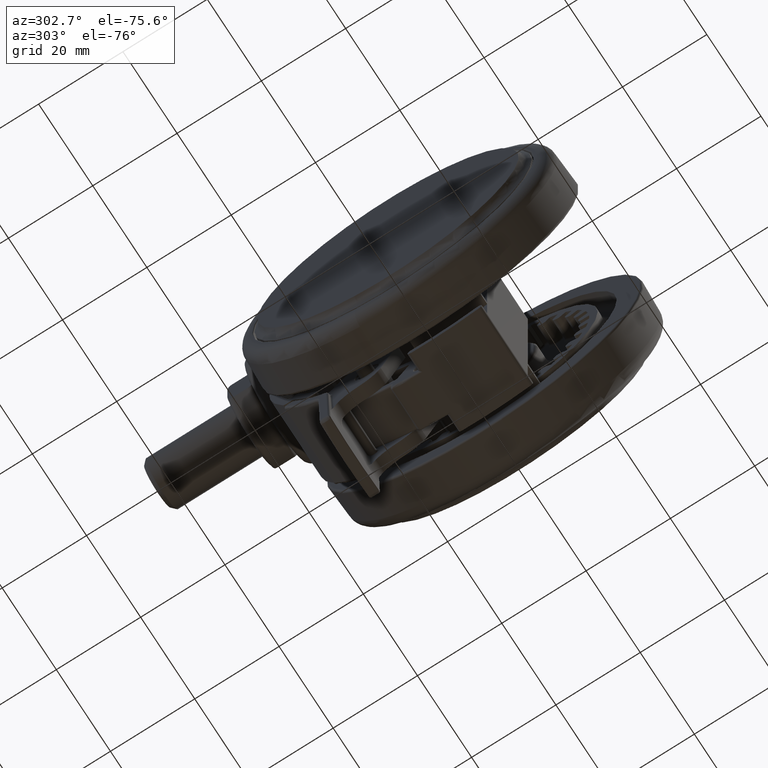
[diagram: clean part render]
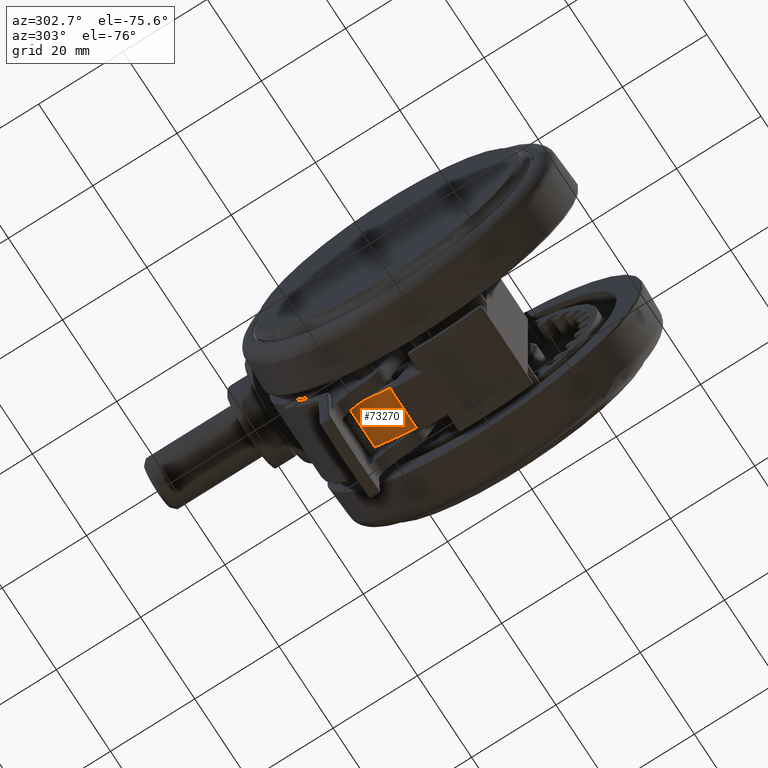
[diagram: same view with one face highlighted and labeled with its STEP entity id]
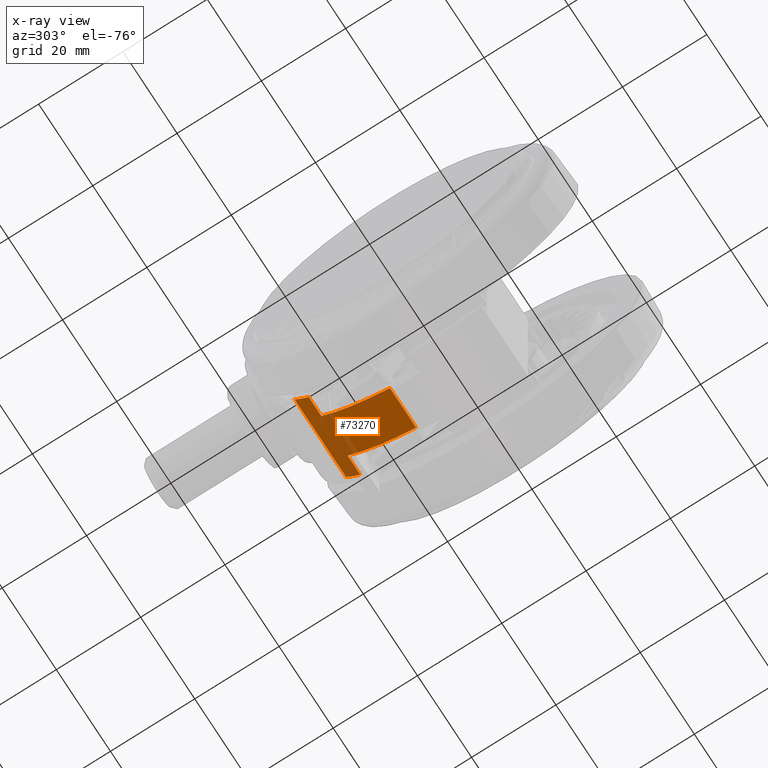
[diagram: x-ray of the same camera — body ghosted, the highlighted face saturated]
A machine part, auxiliary view. The second image highlights one B-rep face of the part: STEP entity #73270.
The next image is the same camera in x-ray: the body ghosted, the highlighted face saturated — about 19% of this face is hidden behind the body in this view.
In plain terms, the highlighted cylindrical surface (partial cylindrical patch) has radius 35.5 mm, axis along (1, 0, 0).
Its self-contained STEP definition (entity closure, byte-faithful):
#74 = CARTESIAN_POINT ( 'NONE',  ( -5.204170427930421300E-015, 0.0000000000000000000, -28.69999999999990700 ) ) ;
#977 = AXIS2_PLACEMENT_3D ( 'NONE', #5918, #45802, #11608 ) ;
#1355 = CIRCLE ( 'NONE', #14202, 35.50000000000000000 ) ;
#1460 = DIRECTION ( 'NONE',  ( -0.1091445485807130300, 0.9940258887549722200, 0.0000000000000000000 ) ) ;
#5814 = DIRECTION ( 'NONE',  ( -0.1091445485807130300, 0.9940258887549722200, 0.0000000000000000000 ) ) ;
#5918 = CARTESIAN_POINT ( 'NONE',  ( -5.204170427930421300E-015, 0.0000000000000000000, -33.34999999999990900 ) ) ;
#6624 = CARTESIAN_POINT ( 'NONE',  ( -33.03141561904752900, 13.00675140847021900, -36.40099999999990400 ) ) ;
#7999 = DIRECTION ( 'NONE',  ( 0.0000000000000000000, -0.0000000000000000000, -1.000000000000000000 ) ) ;
#9036 = CIRCLE ( 'NONE', #41539, 35.50000000000000000 ) ;
#9169 = CIRCLE ( 'NONE', #977, 35.50000000000000000 ) ;
#9514 = EDGE_LOOP ( 'NONE', ( #57098, #19425, #15580, #42520, #32106, #70803, #17368, #48342 ) ) ;
#9768 = DIRECTION ( 'NONE',  ( -0.0000000000000000000, -0.0000000000000000000, -1.000000000000000000 ) ) ;
#11323 = EDGE_CURVE ( 'NONE', #51464, #35226, #49278, .T. ) ;
#11608 = DIRECTION ( 'NONE',  ( -0.1091445485807130300, 0.9940258887549722200, 0.0000000000000000000 ) ) ;
#13262 = DIRECTION ( 'NONE',  ( 0.0000000000000000000, 0.0000000000000000000, 1.000000000000000000 ) ) ;
#14202 = AXIS2_PLACEMENT_3D ( 'NONE', #63217, #29027, #68937 ) ;
#15292 = VERTEX_POINT ( 'NONE', #29981 ) ;
#15580 = ORIENTED_EDGE ( 'NONE', *, *, #28801, .T. ) ;
#16833 = VERTEX_POINT ( 'NONE', #48258 ) ;
#17368 = ORIENTED_EDGE ( 'NONE', *, *, #68853, .T. ) ;
#19425 = ORIENTED_EDGE ( 'NONE', *, *, #41854, .T. ) ;
#22485 = LINE ( 'NONE', #6624, #49350 ) ;
#23152 = DIRECTION ( 'NONE',  ( -0.0000000000000000000, -0.0000000000000000000, -1.000000000000000000 ) ) ;
#23189 = CARTESIAN_POINT ( 'NONE',  ( -30.23706247815414400, 18.60027023169834600, -33.34999999999990900 ) ) ;
#23621 = CARTESIAN_POINT ( 'NONE',  ( -33.03141561904752900, 13.00675140847021900, -14.34999999999990500 ) ) ;
#23850 = CYLINDRICAL_SURFACE ( 'NONE', #39326, 35.50000000000000000 ) ;
#24522 = CARTESIAN_POINT ( 'NONE',  ( -15.35567449966441300, 32.00708141428013700, -18.99999999999990800 ) ) ;
#24581 = CARTESIAN_POINT ( 'NONE',  ( -30.23706247815414400, 18.60027023169834600, -14.34999999999990500 ) ) ;
#24909 = EDGE_CURVE ( 'NONE', #71985, #16833, #9169, .T. ) ;
#26543 = VERTEX_POINT ( 'NONE', #24522 ) ;
#26926 = LINE ( 'NONE', #32640, #40423 ) ;
#27087 = EDGE_CURVE ( 'NONE', #16833, #51464, #22485, .T. ) ;
#28355 = LINE ( 'NONE', #55142, #41843 ) ;
#28801 = EDGE_CURVE ( 'NONE', #37946, #71985, #45553, .T. ) ;
#29027 = DIRECTION ( 'NONE',  ( 0.0000000000000000000, -0.0000000000000000000, -1.000000000000000000 ) ) ;
#29981 = CARTESIAN_POINT ( 'NONE',  ( -30.23706247815414400, 18.60027023169834600, -18.99999999999990800 ) ) ;
#32106 = ORIENTED_EDGE ( 'NONE', *, *, #27087, .T. ) ;
#32405 = DIRECTION ( 'NONE',  ( -0.0000000000000000000, -0.0000000000000000000, -1.000000000000000000 ) ) ;
#32534 = VERTEX_POINT ( 'NONE', #61105 ) ;
#32640 = CARTESIAN_POINT ( 'NONE',  ( -15.35567449966441300, 32.00708141428013700, -36.40099999999990400 ) ) ;
#35226 = VERTEX_POINT ( 'NONE', #24581 ) ;
#35551 = DIRECTION ( 'NONE',  ( 0.0000000000000000000, 0.0000000000000000000, 1.000000000000000000 ) ) ;
#37946 = VERTEX_POINT ( 'NONE', #62782 ) ;
#39326 = AXIS2_PLACEMENT_3D ( 'NONE', #52538, #35551, #1460 ) ;
#39942 = DIRECTION ( 'NONE',  ( 0.0000000000000000000, 0.0000000000000000000, 1.000000000000000000 ) ) ;
#40423 = VECTOR ( 'NONE', #9768, 1000.000000000000000 ) ;
#41539 = AXIS2_PLACEMENT_3D ( 'NONE', #74, #39942, #5814 ) ;
#41843 = VECTOR ( 'NONE', #32405, 1000.000000000000000 ) ;
#41854 = EDGE_CURVE ( 'NONE', #32534, #37946, #9036, .T. ) ;
#42133 = CARTESIAN_POINT ( 'NONE',  ( -5.204170427930421300E-015, 0.0000000000000000000, -14.34999999999990500 ) ) ;
#42520 = ORIENTED_EDGE ( 'NONE', *, *, #24909, .T. ) ;
#45553 = LINE ( 'NONE', #63061, #58864 ) ;
#45802 = DIRECTION ( 'NONE',  ( 0.0000000000000000000, 0.0000000000000000000, 1.000000000000000000 ) ) ;
#46382 = EDGE_CURVE ( 'NONE', #15292, #26543, #1355, .T. ) ;
#47869 = DIRECTION ( 'NONE',  ( 0.1091445485807130300, -0.9940258887549722200, 0.0000000000000000000 ) ) ;
#48258 = CARTESIAN_POINT ( 'NONE',  ( -33.03141561904752900, 13.00675140847021900, -33.34999999999990900 ) ) ;
#48342 = ORIENTED_EDGE ( 'NONE', *, *, #46382, .T. ) ;
#49278 = CIRCLE ( 'NONE', #64482, 35.50000000000000000 ) ;
#49350 = VECTOR ( 'NONE', #13262, 1000.000000000000000 ) ;
#51464 = VERTEX_POINT ( 'NONE', #23621 ) ;
#52538 = CARTESIAN_POINT ( 'NONE',  ( -5.204170427930421300E-015, 0.0000000000000000000, -36.40099999999990400 ) ) ;
#55142 = CARTESIAN_POINT ( 'NONE',  ( -30.23706247815414400, 18.60027023169834600, -36.40099999999990400 ) ) ;
#57098 = ORIENTED_EDGE ( 'NONE', *, *, #66281, .T. ) ;
#58864 = VECTOR ( 'NONE', #23152, 1000.000000000000000 ) ;
#61105 = CARTESIAN_POINT ( 'NONE',  ( -15.35567449966441300, 32.00708141428013700, -28.69999999999990700 ) ) ;
#62782 = CARTESIAN_POINT ( 'NONE',  ( -30.23706247815414400, 18.60027023169834600, -28.69999999999990700 ) ) ;
#63061 = CARTESIAN_POINT ( 'NONE',  ( -30.23706247815414400, 18.60027023169834600, -36.40099999999990400 ) ) ;
#63217 = CARTESIAN_POINT ( 'NONE',  ( -5.204170427930421300E-015, 0.0000000000000000000, -18.99999999999990800 ) ) ;
#64482 = AXIS2_PLACEMENT_3D ( 'NONE', #42133, #7999, #47869 ) ;
#66281 = EDGE_CURVE ( 'NONE', #26543, #32534, #26926, .T. ) ;
#68853 = EDGE_CURVE ( 'NONE', #35226, #15292, #28355, .T. ) ;
#68937 = DIRECTION ( 'NONE',  ( 0.1091445485807130300, -0.9940258887549722200, 0.0000000000000000000 ) ) ;
#69363 = FACE_OUTER_BOUND ( 'NONE', #9514, .T. ) ;
#70803 = ORIENTED_EDGE ( 'NONE', *, *, #11323, .T. ) ;
#71985 = VERTEX_POINT ( 'NONE', #23189 ) ;
#73270 = ADVANCED_FACE ( 'NONE', ( #69363 ), #23850, .T. ) ;